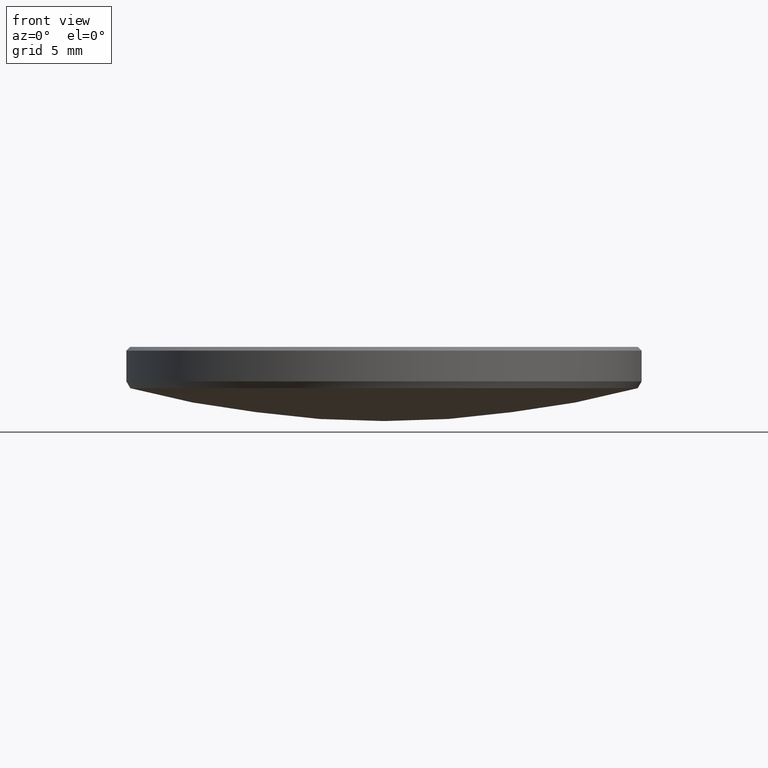
[diagram: clean part render]
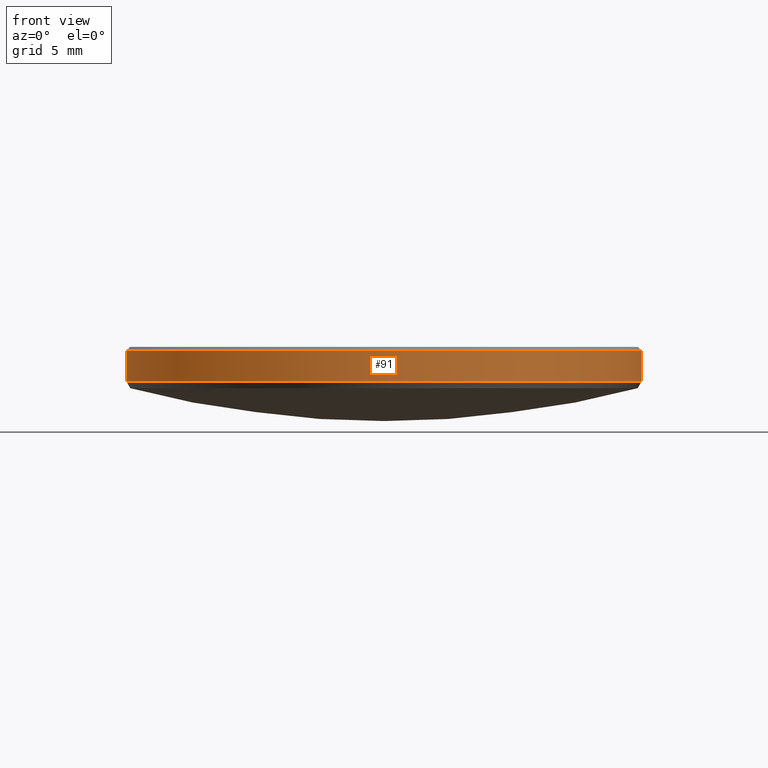
[diagram: same view with one face highlighted and labeled with its STEP entity id]
A machine part, front view. The second image highlights one B-rep face of the part: STEP entity #91.
In plain terms, the highlighted cylindrical surface (partial cylindrical patch) has radius 12.7 mm, axis along (-0, -0, -1).
Its self-contained STEP definition (entity closure, byte-faithful):
#7 = AXIS2_PLACEMENT_3D ( 'NONE', #55, #16, #12 ) ;
#12 = DIRECTION ( 'NONE',  ( -1.000000000000000000, 0.000000000000000000, 0.000000000000000000 ) ) ;
#15 = CARTESIAN_POINT ( 'NONE',  ( -12.69999999999999929, 0.000000000000000000, 10.00000000000000000 ) ) ;
#16 = DIRECTION ( 'NONE',  ( -0.000000000000000000, -0.000000000000000000, -1.000000000000000000 ) ) ;
#23 = ORIENTED_EDGE ( 'NONE', *, *, #146, .T. ) ;
#38 = CARTESIAN_POINT ( 'NONE',  ( 12.69999999999999929, 1.555301434917138433E-15, 5.799999999999999822 ) ) ;
#42 = CARTESIAN_POINT ( 'NONE',  ( -12.69999999999999929, 0.000000000000000000, 4.282866881517001900 ) ) ;
#46 = VERTEX_POINT ( 'NONE', #38 ) ;
#55 = CARTESIAN_POINT ( 'NONE',  ( 0.000000000000000000, 0.000000000000000000, 10.00000000000000000 ) ) ;
#70 = VECTOR ( 'NONE', #289, 1000.000000000000000 ) ;
#83 = CYLINDRICAL_SURFACE ( 'NONE', #7, 12.69999999999999929 ) ;
#91 = ADVANCED_FACE ( 'NONE', ( #186 ), #83, .T. ) ;
#94 = CARTESIAN_POINT ( 'NONE',  ( -12.69999999999999929, 0.000000000000000000, 5.799999999999999822 ) ) ;
#107 = ORIENTED_EDGE ( 'NONE', *, *, #201, .T. ) ;
#114 = LINE ( 'NONE', #263, #154 ) ;
#119 = AXIS2_PLACEMENT_3D ( 'NONE', #270, #200, #299 ) ;
#146 = EDGE_CURVE ( 'NONE', #180, #234, #255, .T. ) ;
#148 = ORIENTED_EDGE ( 'NONE', *, *, #227, .T. ) ;
#154 = VECTOR ( 'NONE', #317, 1000.000000000000000 ) ;
#167 = DIRECTION ( 'NONE',  ( 0.000000000000000000, 0.000000000000000000, -1.000000000000000000 ) ) ;
#174 = EDGE_LOOP ( 'NONE', ( #332, #107, #148, #23 ) ) ;
#177 = VERTEX_POINT ( 'NONE', #94 ) ;
#180 = VERTEX_POINT ( 'NONE', #42 ) ;
#186 = FACE_OUTER_BOUND ( 'NONE', #174, .T. ) ;
#198 = CARTESIAN_POINT ( 'NONE',  ( 12.69999999999999929, 1.555301434917138433E-15, 4.282866881517001900 ) ) ;
#200 = DIRECTION ( 'NONE',  ( -0.000000000000000000, -0.000000000000000000, 1.000000000000000000 ) ) ;
#201 = EDGE_CURVE ( 'NONE', #46, #177, #330, .T. ) ;
#224 = CARTESIAN_POINT ( 'NONE',  ( 0.000000000000000000, 0.000000000000000000, 5.799999999999999822 ) ) ;
#227 = EDGE_CURVE ( 'NONE', #177, #180, #244, .T. ) ;
#234 = VERTEX_POINT ( 'NONE', #198 ) ;
#244 = LINE ( 'NONE', #15, #70 ) ;
#255 = CIRCLE ( 'NONE', #119, 12.69999999999999929 ) ;
#263 = CARTESIAN_POINT ( 'NONE',  ( 12.69999999999999929, 1.555301434917138433E-15, 10.00000000000000000 ) ) ;
#270 = CARTESIAN_POINT ( 'NONE',  ( 0.000000000000000000, 0.000000000000000000, 4.282866881517001900 ) ) ;
#281 = EDGE_CURVE ( 'NONE', #46, #234, #114, .T. ) ;
#289 = DIRECTION ( 'NONE',  ( -0.000000000000000000, -0.000000000000000000, -1.000000000000000000 ) ) ;
#297 = DIRECTION ( 'NONE',  ( 1.000000000000000000, 0.000000000000000000, 0.000000000000000000 ) ) ;
#299 = DIRECTION ( 'NONE',  ( -1.000000000000000000, 0.000000000000000000, 0.000000000000000000 ) ) ;
#308 = AXIS2_PLACEMENT_3D ( 'NONE', #224, #167, #297 ) ;
#317 = DIRECTION ( 'NONE',  ( -0.000000000000000000, -0.000000000000000000, -1.000000000000000000 ) ) ;
#330 = CIRCLE ( 'NONE', #308, 12.69999999999999929 ) ;
#332 = ORIENTED_EDGE ( 'NONE', *, *, #281, .F. ) ;